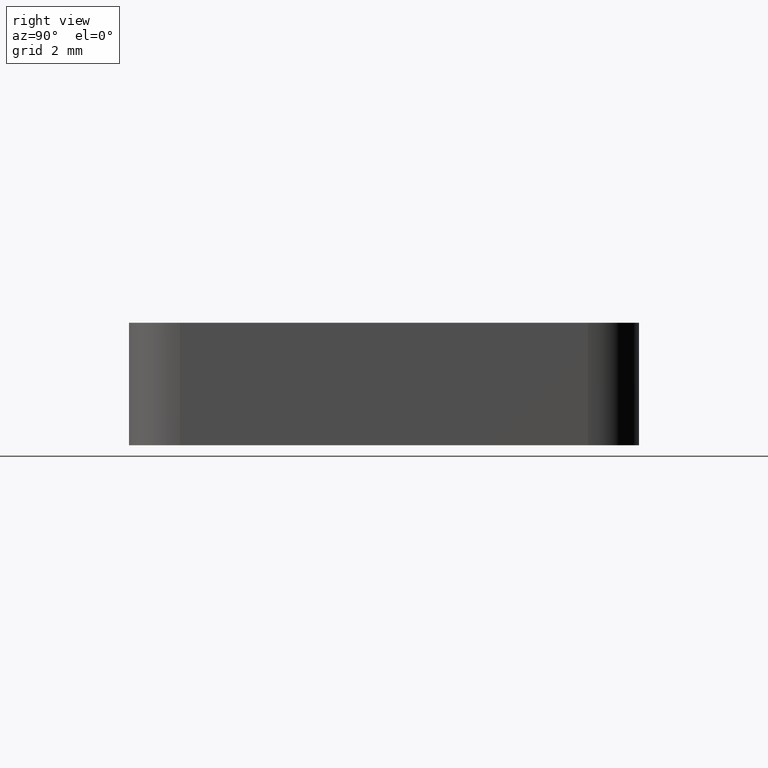
[diagram: clean part render]
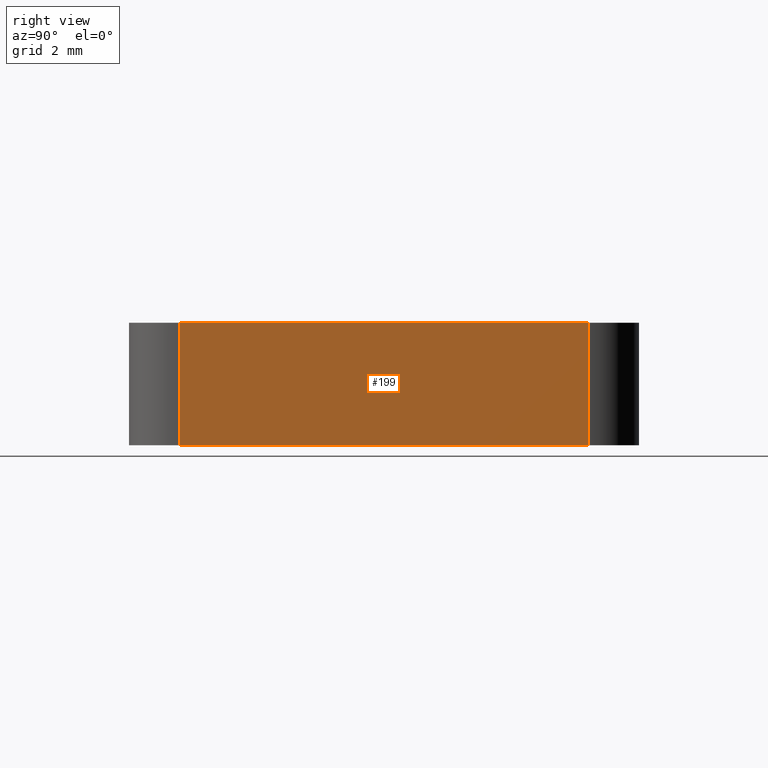
[diagram: same view with one face highlighted and labeled with its STEP entity id]
A machine part, right view. The second image highlights one B-rep face of the part: STEP entity #199.
In plain terms, the highlighted planar face has unit normal (-1, 0, 0).
Its self-contained STEP definition (entity closure, byte-faithful):
#18=PLANE('',#239);
#27=FACE_OUTER_BOUND('',#38,.T.);
#38=EDGE_LOOP('',(#152,#153,#154,#155));
#53=LINE('',#337,#70);
#54=LINE('',#341,#71);
#55=LINE('',#343,#72);
#56=LINE('',#344,#73);
#70=VECTOR('',#276,2.4);
#71=VECTOR('',#281,7.99999999999989);
#72=VECTOR('',#282,2.4);
#73=VECTOR('',#283,7.99999999999989);
#99=VERTEX_POINT('',#334);
#100=VERTEX_POINT('',#336);
#101=VERTEX_POINT('',#340);
#102=VERTEX_POINT('',#342);
#120=EDGE_CURVE('',#100,#99,#53,.T.);
#122=EDGE_CURVE('',#99,#101,#54,.T.);
#123=EDGE_CURVE('',#102,#101,#55,.T.);
#124=EDGE_CURVE('',#100,#102,#56,.T.);
#152=ORIENTED_EDGE('',*,*,#120,.T.);
#153=ORIENTED_EDGE('',*,*,#122,.T.);
#154=ORIENTED_EDGE('',*,*,#123,.F.);
#155=ORIENTED_EDGE('',*,*,#124,.F.);
#199=ADVANCED_FACE('',(#27),#18,.F.);
#239=AXIS2_PLACEMENT_3D('',#339,#279,#280);
#276=DIRECTION('',(0.,0.,-1.));
#279=DIRECTION('center_axis',(-1.,0.,0.));
#280=DIRECTION('ref_axis',(0.,0.,1.));
#281=DIRECTION('',(0.,1.,0.));
#282=DIRECTION('',(0.,0.,-1.));
#283=DIRECTION('',(0.,1.,0.));
#334=CARTESIAN_POINT('',(5.,-3.99999999999989,-2.4));
#336=CARTESIAN_POINT('',(5.,-3.99999999999989,0.));
#337=CARTESIAN_POINT('',(5.,-3.99999999999989,0.));
#339=CARTESIAN_POINT('Origin',(5.,-3.99999999999989,0.));
#340=CARTESIAN_POINT('',(5.,4.,-2.4));
#341=CARTESIAN_POINT('',(5.,-3.99999999999989,-2.4));
#342=CARTESIAN_POINT('',(5.,4.,0.));
#343=CARTESIAN_POINT('',(5.,4.,0.));
#344=CARTESIAN_POINT('',(5.,-3.99999999999989,0.));